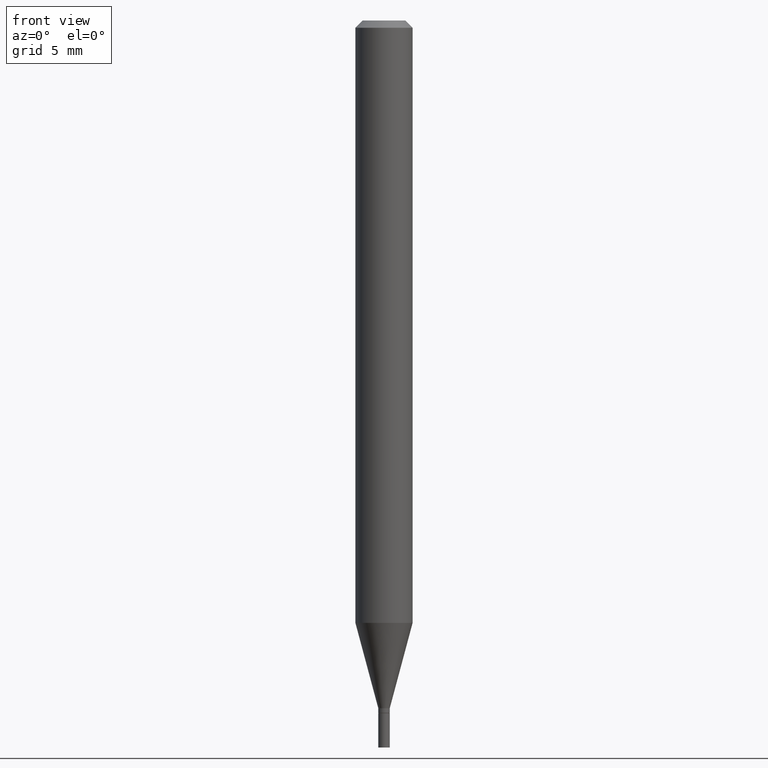
[diagram: clean part render]
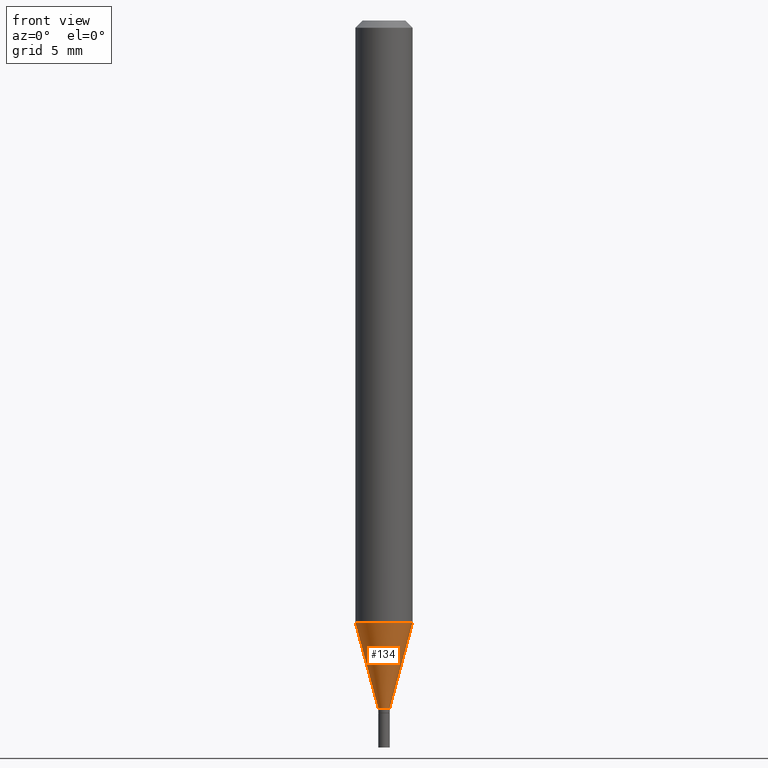
[diagram: same view with one face highlighted and labeled with its STEP entity id]
A machine part, front view. The second image highlights one B-rep face of the part: STEP entity #134.
In plain terms, the highlighted conical surface has half-angle 15 deg.
Its self-contained STEP definition (entity closure, byte-faithful):
#2 = AXIS2_PLACEMENT_3D ( 'NONE', #209, #389, #126 ) ;
#25 = EDGE_CURVE ( 'NONE', #157, #327, #385, .T. ) ;
#35 = CARTESIAN_POINT ( 'NONE',  ( -0.05904999999999999832, -3.919499955787072456E-15, -1.242760599342371153 ) ) ;
#42 = EDGE_CURVE ( 'NONE', #220, #157, #160, .T. ) ;
#43 = CIRCLE ( 'NONE', #453, 0.05904999999999999832 ) ;
#48 = CARTESIAN_POINT ( 'NONE',  ( 3.039132279247712903E-29, -4.339075441253411949E-15, -1.242760599342371153 ) ) ;
#92 = DIRECTION ( 'NONE',  ( -0.2588190451025216832, 5.211531920934551831E-15, 0.9659258262890679791 ) ) ;
#116 = VECTOR ( 'NONE', #92, 39.37007874015748143 ) ;
#126 = DIRECTION ( 'NONE',  ( 1.000000000000000000, -6.982962677686264344E-15, 0.000000000000000000 ) ) ;
#134 = ADVANCED_FACE ( 'NONE', ( #365 ), #382, .T. ) ;
#147 = DIRECTION ( 'NONE',  ( 1.000000000000000000, -6.982962677686264344E-15, 0.000000000000000000 ) ) ;
#157 = VERTEX_POINT ( 'NONE', #207 ) ;
#160 = CIRCLE ( 'NONE', #2, 0.01179999999999992166 ) ;
#168 = AXIS2_PLACEMENT_3D ( 'NONE', #397, #172, #147 ) ;
#172 = DIRECTION ( 'NONE',  ( -2.445468806185136597E-29, 3.491481338843145583E-15, 1.000000000000000000 ) ) ;
#180 = ORIENTED_EDGE ( 'NONE', *, *, #42, .T. ) ;
#185 = CARTESIAN_POINT ( 'NONE',  ( 0.05904999999999999832, -4.751419387370785291E-15, -1.242760599342371153 ) ) ;
#201 = DIRECTION ( 'NONE',  ( 0.2588190451025216832, 1.565188264969619798E-15, 0.9659258262890679791 ) ) ;
#207 = CARTESIAN_POINT ( 'NONE',  ( 0.01179999999999992166, -5.037160127549005190E-15, -1.419100000000000250 ) ) ;
#209 = CARTESIAN_POINT ( 'NONE',  ( 3.470364782857327956E-29, -4.954761167952307855E-15, -1.419100000000000250 ) ) ;
#220 = VERTEX_POINT ( 'NONE', #243 ) ;
#228 = ORIENTED_EDGE ( 'NONE', *, *, #280, .F. ) ;
#234 = DIRECTION ( 'NONE',  ( 1.000000000000000000, -6.982962677686265133E-15, 0.000000000000000000 ) ) ;
#243 = CARTESIAN_POINT ( 'NONE',  ( -0.01179999999999992166, -4.395208540459845312E-15, -1.419100000000000250 ) ) ;
#248 = CARTESIAN_POINT ( 'NONE',  ( 0.01179999999999992166, -5.037160127549005190E-15, -1.419100000000000250 ) ) ;
#260 = EDGE_LOOP ( 'NONE', ( #298, #180, #261, #228 ) ) ;
#261 = ORIENTED_EDGE ( 'NONE', *, *, #25, .T. ) ;
#263 = VECTOR ( 'NONE', #201, 39.37007874015748143 ) ;
#280 = EDGE_CURVE ( 'NONE', #410, #327, #43, .T. ) ;
#288 = CARTESIAN_POINT ( 'NONE',  ( -0.01179999999999992166, -4.870917125132617379E-15, -1.419100000000000250 ) ) ;
#293 = LINE ( 'NONE', #288, #116 ) ;
#298 = ORIENTED_EDGE ( 'NONE', *, *, #458, .F. ) ;
#327 = VERTEX_POINT ( 'NONE', #185 ) ;
#343 = DIRECTION ( 'NONE',  ( -2.445468806185136597E-29, 3.491481338843145583E-15, 1.000000000000000000 ) ) ;
#365 = FACE_OUTER_BOUND ( 'NONE', #260, .T. ) ;
#382 = CONICAL_SURFACE ( 'NONE', #168, 0.01179999999999992166, 0.2617993877991502960 ) ;
#385 = LINE ( 'NONE', #248, #263 ) ;
#389 = DIRECTION ( 'NONE',  ( -2.445468806185136597E-29, 3.491481338843145583E-15, 1.000000000000000000 ) ) ;
#397 = CARTESIAN_POINT ( 'NONE',  ( 3.470364782857327956E-29, -4.954761167952307855E-15, -1.419100000000000250 ) ) ;
#410 = VERTEX_POINT ( 'NONE', #35 ) ;
#453 = AXIS2_PLACEMENT_3D ( 'NONE', #48, #343, #234 ) ;
#458 = EDGE_CURVE ( 'NONE', #220, #410, #293, .T. ) ;